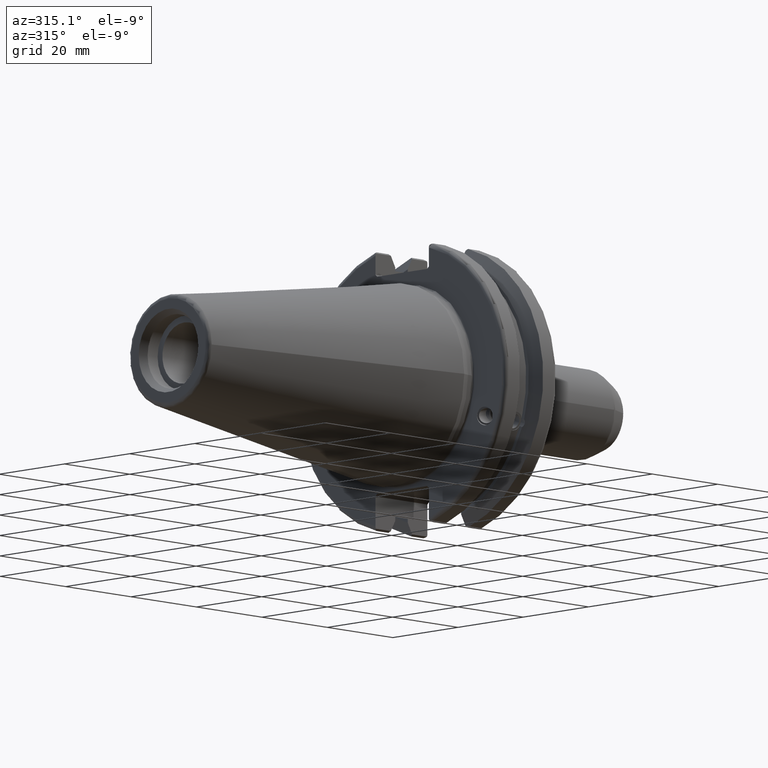
[diagram: clean part render]
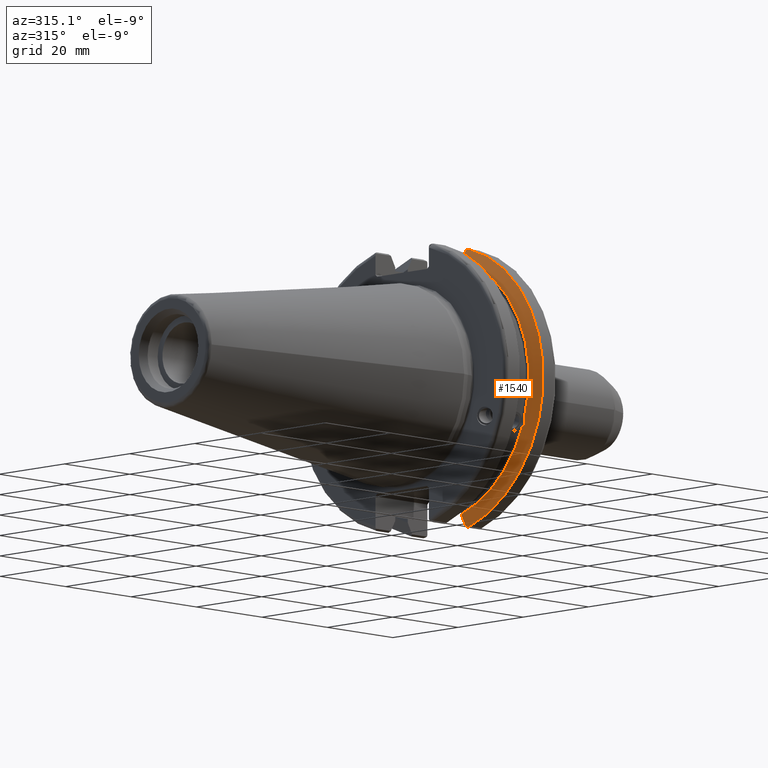
[diagram: same view with one face highlighted and labeled with its STEP entity id]
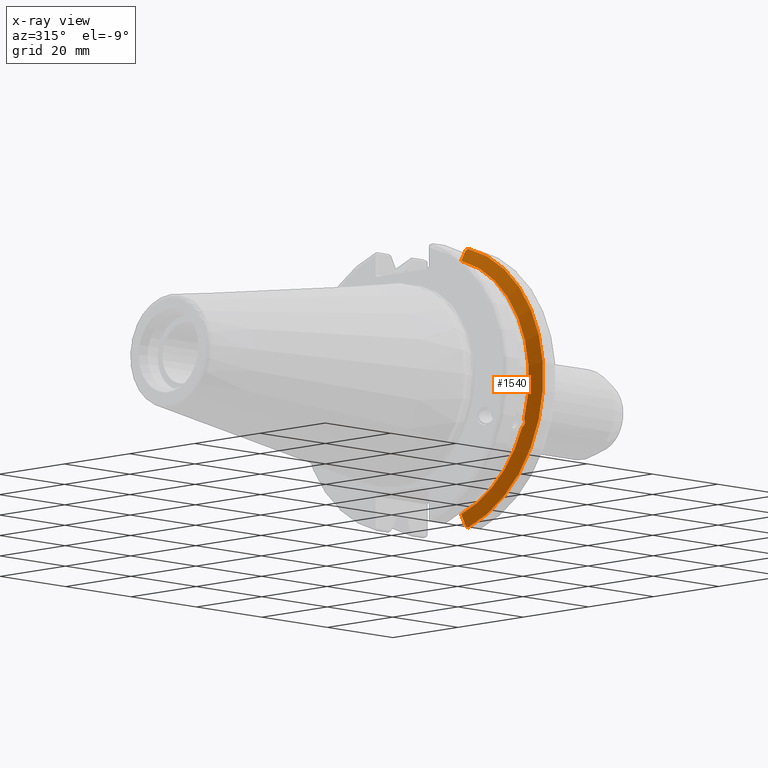
[diagram: x-ray of the same camera — body ghosted, the highlighted face saturated]
A machine part, auxiliary view. The second image highlights one B-rep face of the part: STEP entity #1540.
The next image is the same camera in x-ray: the body ghosted, the highlighted face saturated — about 0% of this face is hidden behind the body in this view.
In plain terms, the highlighted conical surface has half-angle 60 deg.
Its self-contained STEP definition (entity closure, byte-faithful):
#15=(
BOUNDED_CURVE()
B_SPLINE_CURVE(2,(#2641,#2642,#2643),.UNSPECIFIED.,.F.,.F.)
B_SPLINE_CURVE_WITH_KNOTS((3,3),(0.,0.276549142795512),.UNSPECIFIED.)
CURVE()
GEOMETRIC_REPRESENTATION_ITEM()
RATIONAL_B_SPLINE_CURVE((1.,1.00095203904184,1.00031614445102))
REPRESENTATION_ITEM('')
);
#16=(
BOUNDED_CURVE()
B_SPLINE_CURVE(2,(#2645,#2646,#2647),.UNSPECIFIED.,.F.,.F.)
B_SPLINE_CURVE_WITH_KNOTS((3,3),(0.,0.0639048713675663),.UNSPECIFIED.)
CURVE()
GEOMETRIC_REPRESENTATION_ITEM()
RATIONAL_B_SPLINE_CURVE((1.,1.00028444218286,1.00047644010578))
REPRESENTATION_ITEM('')
);
#17=(
BOUNDED_CURVE()
B_SPLINE_CURVE(2,(#2651,#2652,#2653),.UNSPECIFIED.,.F.,.F.)
B_SPLINE_CURVE_WITH_KNOTS((3,3),(0.329353533631206,0.393258405001023),
 .UNSPECIFIED.)
CURVE()
GEOMETRIC_REPRESENTATION_ITEM()
RATIONAL_B_SPLINE_CURVE((1.00047644010579,1.00028444218287,1.))
REPRESENTATION_ITEM('')
);
#18=(
BOUNDED_CURVE()
B_SPLINE_CURVE(2,(#2655,#2656,#2657),.UNSPECIFIED.,.F.,.F.)
B_SPLINE_CURVE_WITH_KNOTS((3,3),(0.0550586467393779,0.331607789535852),
 .UNSPECIFIED.)
CURVE()
GEOMETRIC_REPRESENTATION_ITEM()
RATIONAL_B_SPLINE_CURVE((1.00031614444922,1.00095203903643,1.))
REPRESENTATION_ITEM('')
);
#54=CONICAL_SURFACE('',#1690,30.3546886482472,1.0471975511966);
#71=B_SPLINE_CURVE_WITH_KNOTS('',3,(#2549,#2550,#2551,#2552,#2553,#2554,
#2555,#2556),.UNSPECIFIED.,.F.,.F.,(4,2,2,4),(0.451995700189024,0.464547828547662,
0.504528771685167,0.544509714822672),.UNSPECIFIED.);
#75=B_SPLINE_CURVE_WITH_KNOTS('',3,(#2611,#2612,#2613,#2614,#2615,#2616,
#2617,#2618),.UNSPECIFIED.,.F.,.F.,(4,2,2,4),(0.544509714822672,0.584490657960177,
0.624471601097683,0.637023729456322),.UNSPECIFIED.);
#388=FACE_OUTER_BOUND('',#483,.T.);
#483=EDGE_LOOP('',(#1169,#1170,#1171,#1172,#1173,#1174,#1175,#1176,#1177));
#585=CIRCLE('',#1691,28.9593772964944);
#586=CIRCLE('',#1692,31.75);
#587=CIRCLE('',#1693,28.9593772964944);
#679=VERTEX_POINT('',#2546);
#680=VERTEX_POINT('',#2548);
#687=VERTEX_POINT('',#2609);
#693=VERTEX_POINT('',#2638);
#694=VERTEX_POINT('',#2640);
#695=VERTEX_POINT('',#2644);
#696=VERTEX_POINT('',#2648);
#697=VERTEX_POINT('',#2650);
#698=VERTEX_POINT('',#2654);
#855=EDGE_CURVE('',#680,#679,#71,.T.);
#863=EDGE_CURVE('',#679,#687,#75,.T.);
#872=EDGE_CURVE('',#687,#693,#585,.T.);
#873=EDGE_CURVE('',#693,#694,#15,.T.);
#874=EDGE_CURVE('',#695,#694,#16,.T.);
#875=EDGE_CURVE('',#696,#695,#586,.T.);
#876=EDGE_CURVE('',#697,#696,#17,.T.);
#877=EDGE_CURVE('',#697,#698,#18,.T.);
#878=EDGE_CURVE('',#698,#680,#587,.T.);
#1169=ORIENTED_EDGE('',*,*,#855,.T.);
#1170=ORIENTED_EDGE('',*,*,#863,.T.);
#1171=ORIENTED_EDGE('',*,*,#872,.T.);
#1172=ORIENTED_EDGE('',*,*,#873,.T.);
#1173=ORIENTED_EDGE('',*,*,#874,.F.);
#1174=ORIENTED_EDGE('',*,*,#875,.F.);
#1175=ORIENTED_EDGE('',*,*,#876,.F.);
#1176=ORIENTED_EDGE('',*,*,#877,.T.);
#1177=ORIENTED_EDGE('',*,*,#878,.T.);
#1540=ADVANCED_FACE('',(#388),#54,.T.);
#1690=AXIS2_PLACEMENT_3D('',#2637,#1968,#1969);
#1691=AXIS2_PLACEMENT_3D('',#2639,#1970,#1971);
#1692=AXIS2_PLACEMENT_3D('',#2649,#1972,#1973);
#1693=AXIS2_PLACEMENT_3D('',#2658,#1974,#1975);
#1968=DIRECTION('center_axis',(1.,0.,0.));
#1969=DIRECTION('ref_axis',(0.,-1.,-1.22464679914735E-16));
#1970=DIRECTION('center_axis',(1.,0.,0.));
#1971=DIRECTION('ref_axis',(0.,0.,-1.));
#1972=DIRECTION('center_axis',(1.,0.,0.));
#1973=DIRECTION('ref_axis',(0.,0.,-1.));
#1974=DIRECTION('center_axis',(1.,0.,0.));
#1975=DIRECTION('ref_axis',(0.,0.,-1.));
#2546=CARTESIAN_POINT('',(13.2341,-27.51401829017,-10.0142836826778));
#2548=CARTESIAN_POINT('',(13.0491,-27.4956274489925,-9.09043478536245));
#2549=CARTESIAN_POINT('Ctrl Pts',(13.0491,-27.4956274489925,-9.09043478536245));
#2550=CARTESIAN_POINT('Ctrl Pts',(13.0632204071996,-27.5087667900418,-9.12860597076217));
#2551=CARTESIAN_POINT('Ctrl Pts',(13.0766929817857,-27.5206055003513,-9.16696618806877));
#2552=CARTESIAN_POINT('Ctrl Pts',(13.130081441159,-27.5642934663232,-9.32791534028656));
#2553=CARTESIAN_POINT('Ctrl Pts',(13.1682197084175,-27.5867382255984,-9.46717946402648));
#2554=CARTESIAN_POINT('Ctrl Pts',(13.2204106446058,-27.5847569104122,-9.74771639360671));
#2555=CARTESIAN_POINT('Ctrl Pts',(13.2341,-27.559599249844,-9.8890510252165));
#2556=CARTESIAN_POINT('Ctrl Pts',(13.2341,-27.51401829017,-10.0142836826777));
#2609=CARTESIAN_POINT('',(13.0491,-26.9060914640648,-10.7101715919071));
#2611=CARTESIAN_POINT('Ctrl Pts',(13.2341,-27.51401829017,-10.0142836826777));
#2612=CARTESIAN_POINT('Ctrl Pts',(13.2341,-27.4684373304961,-10.139516340139));
#2613=CARTESIAN_POINT('Ctrl Pts',(13.2204106446058,-27.3968610665578,-10.2639559818059));
#2614=CARTESIAN_POINT('Ctrl Pts',(13.1682197084175,-27.2180531796526,-10.4801333026531));
#2615=CARTESIAN_POINT('Ctrl Pts',(13.130081441159,-27.1113422433189,-10.5723885976054));
#2616=CARTESIAN_POINT('Ctrl Pts',(13.0766929817857,-26.9744191989197,-10.6676007180673));
#2617=CARTESIAN_POINT('Ctrl Pts',(13.0632204071996,-26.9406927482839,-10.6893765730703));
#2618=CARTESIAN_POINT('Ctrl Pts',(13.0491,-26.9060914640648,-10.7101715919071));
#2637=CARTESIAN_POINT('Origin',(13.8546833845378,0.,0.));
#2638=CARTESIAN_POINT('',(13.0491,-8.19,-27.7771386827498));
#2639=CARTESIAN_POINT('Origin',(13.0491,0.,0.));
#2640=CARTESIAN_POINT('',(14.3815146964874,-8.19,-30.1755016258903));
#2641=CARTESIAN_POINT('Ctrl Pts',(13.0491,-8.19,-27.7771386827498));
#2642=CARTESIAN_POINT('Ctrl Pts',(13.68773643849,-8.19,-28.9303689539956));
#2643=CARTESIAN_POINT('Ctrl Pts',(14.3815146964874,-8.19,-30.1755016258903));
#2644=CARTESIAN_POINT('',(14.6602667690756,-8.67204822802686,-30.5427254764662));
#2645=CARTESIAN_POINT('Ctrl Pts',(14.6602667690756,-8.67204822802687,-30.5427254764662));
#2646=CARTESIAN_POINT('Ctrl Pts',(14.5192085187837,-8.42917748262644,-30.357706789263));
#2647=CARTESIAN_POINT('Ctrl Pts',(14.3815146964874,-8.19,-30.1755016258903));
#2648=CARTESIAN_POINT('',(14.6602667690756,-8.67204822802685,30.5427254764662));
#2649=CARTESIAN_POINT('Origin',(14.6602667690756,0.,0.));
#2650=CARTESIAN_POINT('',(14.3815146964874,-8.19,30.1755016258903));
#2651=CARTESIAN_POINT('Ctrl Pts',(14.3815146964874,-8.19,30.1755016258903));
#2652=CARTESIAN_POINT('Ctrl Pts',(14.5192085187884,-8.42917748263465,30.3577067892692));
#2653=CARTESIAN_POINT('Ctrl Pts',(14.6602667690756,-8.67204822802686,30.5427254764662));
#2654=CARTESIAN_POINT('',(13.0491,-8.19,27.7771386827498));
#2655=CARTESIAN_POINT('Ctrl Pts',(14.3815146964874,-8.19,30.1755016258903));
#2656=CARTESIAN_POINT('Ctrl Pts',(13.687736438474,-8.19,28.9303689539668));
#2657=CARTESIAN_POINT('Ctrl Pts',(13.0491,-8.19,27.7771386827498));
#2658=CARTESIAN_POINT('Origin',(13.0491,0.,0.));